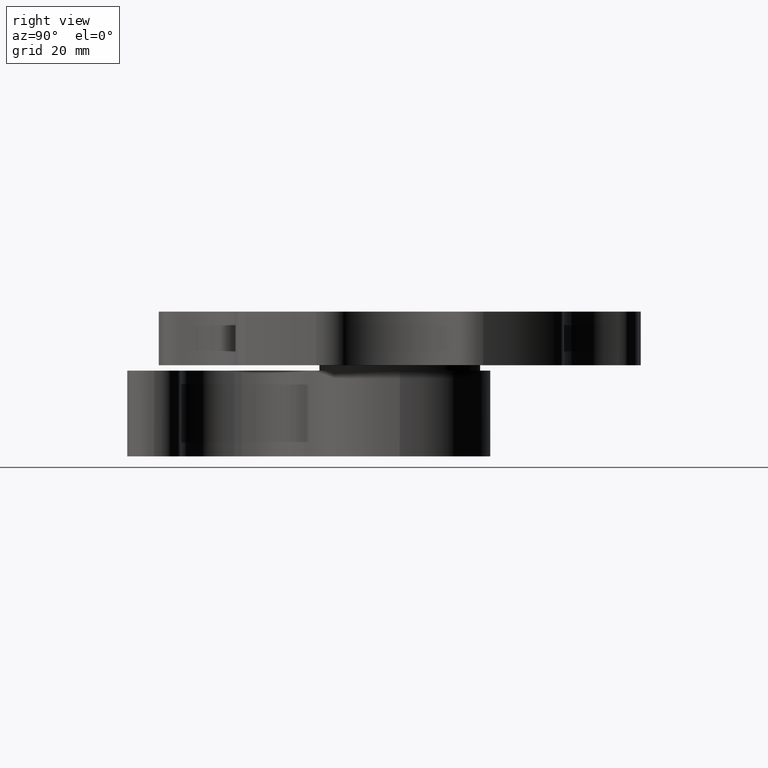
[diagram: clean part render]
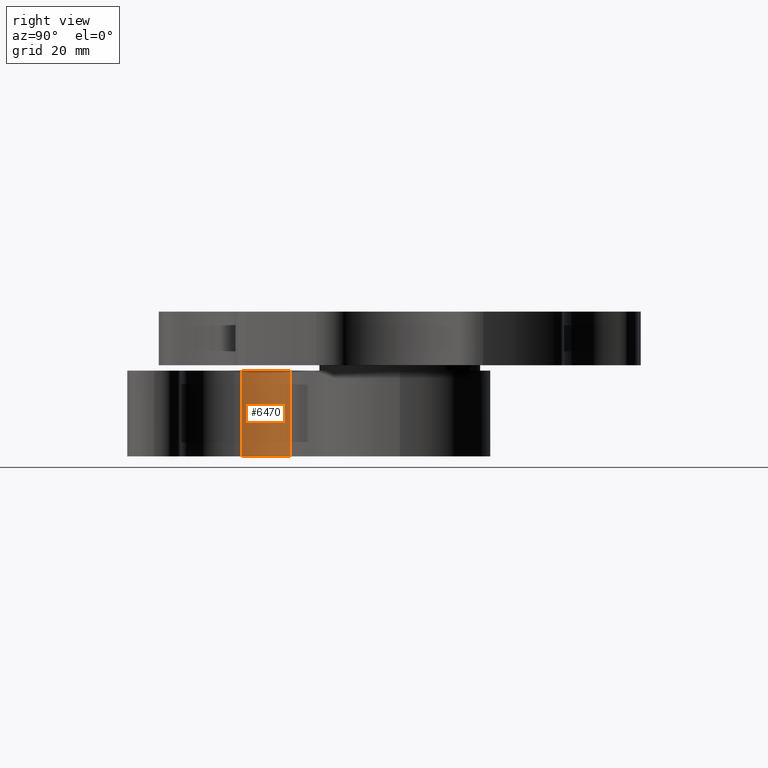
[diagram: same view with one face highlighted and labeled with its STEP entity id]
A machine part, right view. The second image highlights one B-rep face of the part: STEP entity #6470.
In plain terms, the highlighted cylindrical surface (partial cylindrical patch) has radius 11 mm, axis along (0, 0, 1).
Its self-contained STEP definition (entity closure, byte-faithful):
#22 = CIRCLE ( 'NONE', #4435, 11.00000000000001100 ) ;
#422 = DIRECTION ( 'NONE',  ( -0.0000000000000000000, 0.0000000000000000000, 1.000000000000000000 ) ) ;
#964 = VERTEX_POINT ( 'NONE', #2197 ) ;
#1282 = EDGE_CURVE ( 'NONE', #10979, #13855, #1456, .T. ) ;
#1456 = LINE ( 'NONE', #10165, #13911 ) ;
#2197 = CARTESIAN_POINT ( 'NONE',  ( -11.00000000000002300, -29.54287285833695600, -16.00000000000000000 ) ) ;
#2517 = CIRCLE ( 'NONE', #7314, 11.00000000000001100 ) ;
#3043 = DIRECTION ( 'NONE',  ( 0.0000000000000000000, 0.0000000000000000000, 1.000000000000000000 ) ) ;
#3221 = DIRECTION ( 'NONE',  ( 0.0000000000000000000, 0.0000000000000000000, 1.000000000000000000 ) ) ;
#4435 = AXIS2_PLACEMENT_3D ( 'NONE', #6996, #10527, #8224 ) ;
#4591 = CARTESIAN_POINT ( 'NONE',  ( -0.002681564368387998100, -29.29999999999997900, -16.00000000000000000 ) ) ;
#5371 = EDGE_CURVE ( 'NONE', #10979, #964, #2517, .T. ) ;
#5434 = ORIENTED_EDGE ( 'NONE', *, *, #5371, .F. ) ;
#5652 = CARTESIAN_POINT ( 'NONE',  ( -11.00000000000002300, -29.54287285833695600, -16.00000000000000000 ) ) ;
#6060 = ORIENTED_EDGE ( 'NONE', *, *, #1282, .T. ) ;
#6211 = EDGE_LOOP ( 'NONE', ( #12012, #11471, #5434, #6060 ) ) ;
#6387 = CARTESIAN_POINT ( 'NONE',  ( -6.385338524956366300, -20.34111111111102200, -16.00000000000000000 ) ) ;
#6470 = ADVANCED_FACE ( 'NONE', ( #10838 ), #13272, .F. ) ;
#6996 = CARTESIAN_POINT ( 'NONE',  ( -0.002681564368387998100, -29.29999999999997900, 0.0000000000000000000 ) ) ;
#7314 = AXIS2_PLACEMENT_3D ( 'NONE', #14814, #422, #10011 ) ;
#8129 = DIRECTION ( 'NONE',  ( 0.0000000000000000000, 0.0000000000000000000, 1.000000000000000000 ) ) ;
#8224 = DIRECTION ( 'NONE',  ( 1.000000000000000000, 0.0000000000000000000, 0.0000000000000000000 ) ) ;
#8427 = LINE ( 'NONE', #5652, #12746 ) ;
#8881 = EDGE_CURVE ( 'NONE', #13855, #12718, #22, .T. ) ;
#9859 = EDGE_CURVE ( 'NONE', #964, #12718, #8427, .T. ) ;
#10011 = DIRECTION ( 'NONE',  ( 1.000000000000000000, 0.0000000000000000000, 0.0000000000000000000 ) ) ;
#10165 = CARTESIAN_POINT ( 'NONE',  ( -6.385338524956366300, -20.34111111111102200, -16.00000000000000000 ) ) ;
#10244 = AXIS2_PLACEMENT_3D ( 'NONE', #4591, #8129, #11907 ) ;
#10527 = DIRECTION ( 'NONE',  ( -0.0000000000000000000, 0.0000000000000000000, 1.000000000000000000 ) ) ;
#10838 = FACE_OUTER_BOUND ( 'NONE', #6211, .T. ) ;
#10979 = VERTEX_POINT ( 'NONE', #6387 ) ;
#11471 = ORIENTED_EDGE ( 'NONE', *, *, #9859, .F. ) ;
#11633 = CARTESIAN_POINT ( 'NONE',  ( -6.385338524956366300, -20.34111111111102200, 0.0000000000000000000 ) ) ;
#11907 = DIRECTION ( 'NONE',  ( 1.000000000000000000, 0.0000000000000000000, 0.0000000000000000000 ) ) ;
#12012 = ORIENTED_EDGE ( 'NONE', *, *, #8881, .T. ) ;
#12718 = VERTEX_POINT ( 'NONE', #15193 ) ;
#12746 = VECTOR ( 'NONE', #3221, 1000.000000000000000 ) ;
#13272 = CYLINDRICAL_SURFACE ( 'NONE', #10244, 11.00000000000001100 ) ;
#13855 = VERTEX_POINT ( 'NONE', #11633 ) ;
#13911 = VECTOR ( 'NONE', #3043, 1000.000000000000000 ) ;
#14814 = CARTESIAN_POINT ( 'NONE',  ( -0.002681564368387998100, -29.29999999999997900, -16.00000000000000000 ) ) ;
#15193 = CARTESIAN_POINT ( 'NONE',  ( -11.00000000000002300, -29.54287285833695600, 0.0000000000000000000 ) ) ;